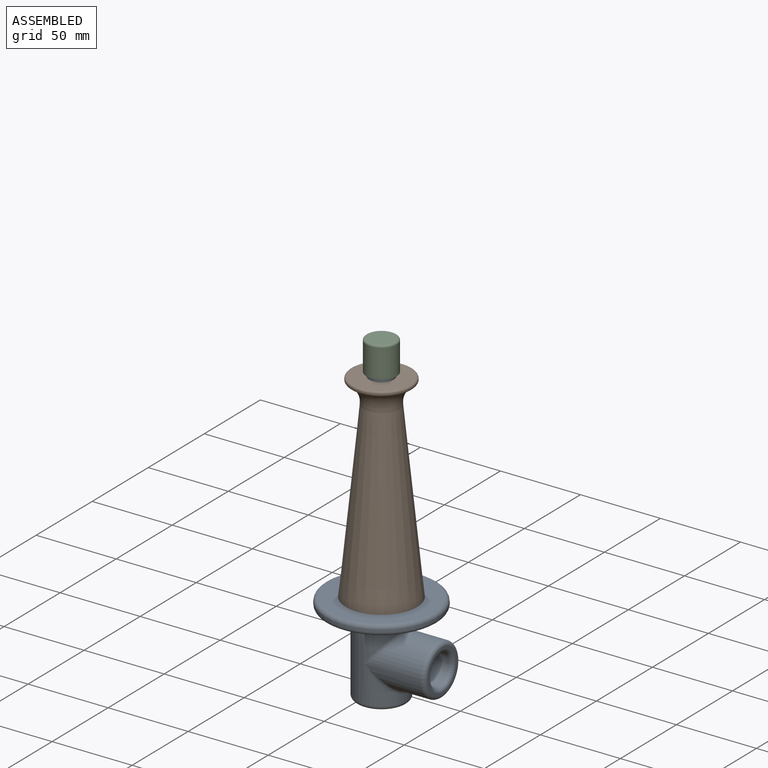
[diagram: assembled view]
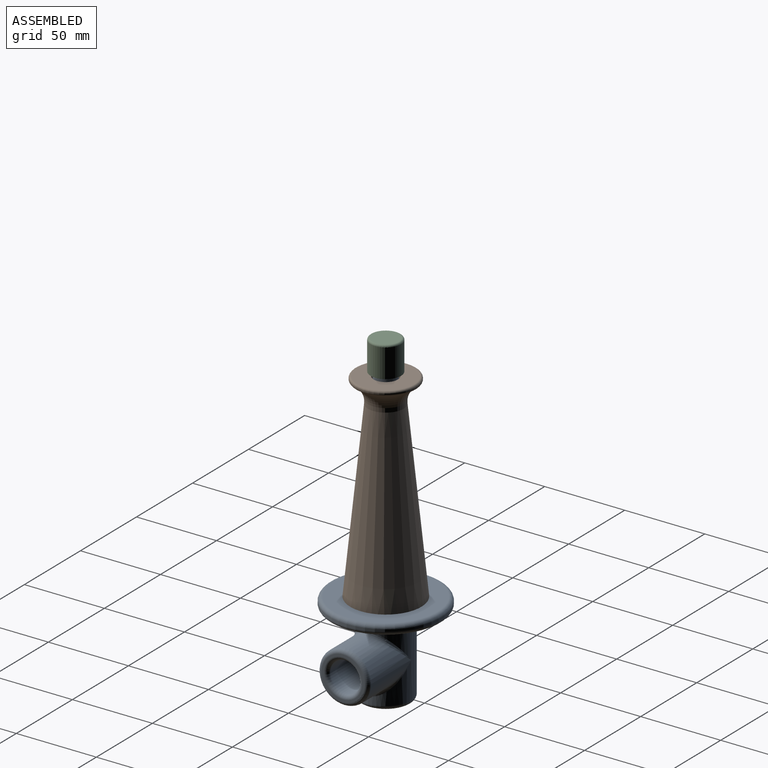
[diagram: assembled view, second angle]
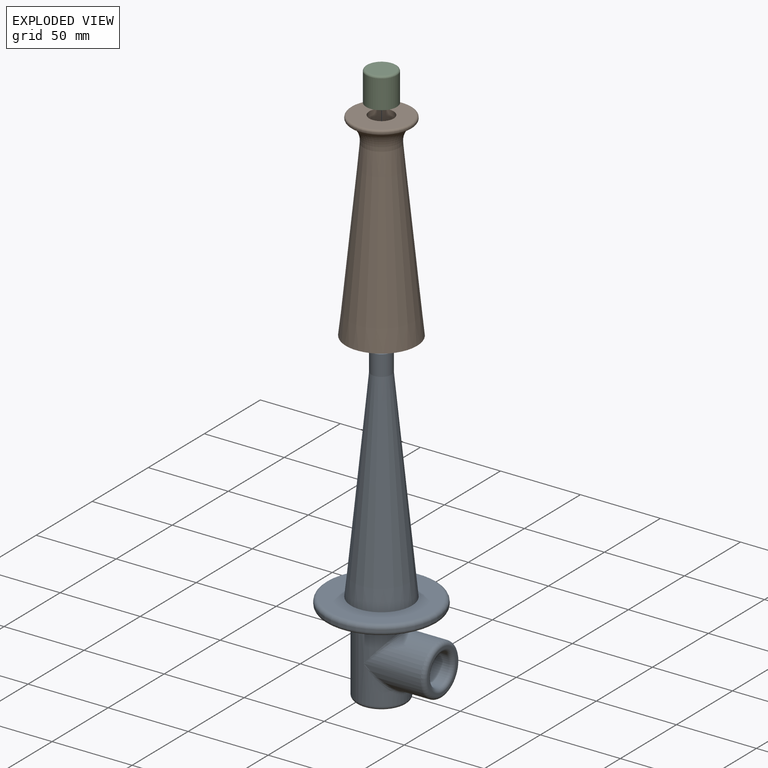
[diagram: exploded view]
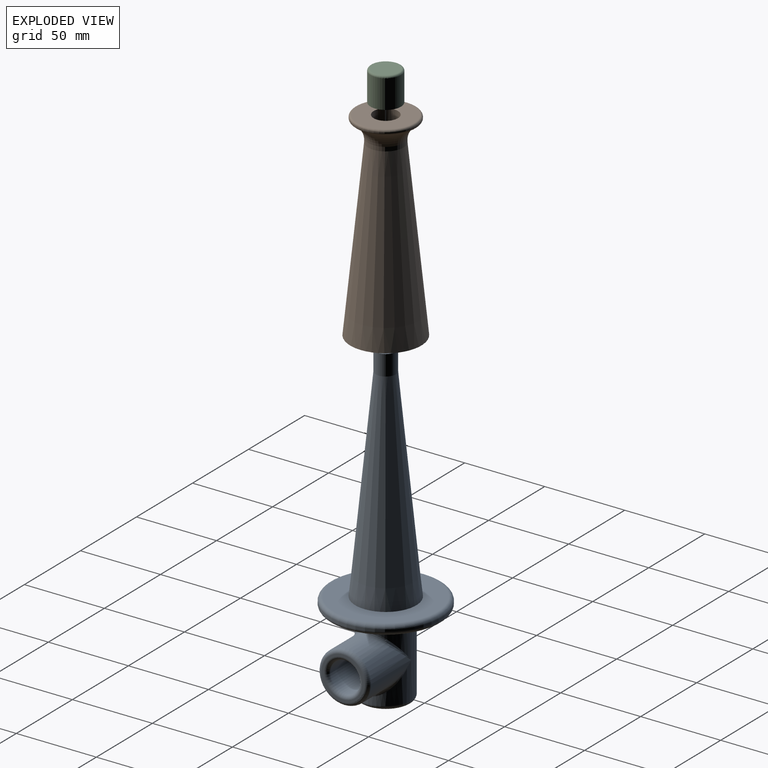
[diagram: exploded view, second angle]
ASSEMBLY  parts=3 mates=2
PART A: 24 faces, bbox 75.9x75.6x196.9 mm
  f0: cylinder r=15.88mm len=45.72mm, axis (0,0,1), area 3391mm2, adj f13,f14,f16,f17
  f1: cone r=19.05mm half-angle=5.7deg, axis (0,0,-1), area 10184.7mm2, adj f4,f22
  f2: cylinder r=34.92mm len=69.85mm, axis (0,0,1), area 278.7mm2, adj f18,f19
  f3: plane 64.77x64.77mm, normal (0,0,-1), area 2229.5mm2, adj f16,f19
  f4: plane 64.77x64.77mm, normal (0,0,1), area 2154.8mm2, adj f1,f18
  f5: plane 26.67x26.67mm, normal (0,0,-1), area 101.3mm2, adj f11,f17
  f6: cylinder r=15.88mm len=35.56mm, axis (-1,0,0), area 2377.6mm2, adj f13,f14,f15
  f7: plane 26.67x26.67mm, normal (1,0,0), area 101.3mm2, adj f12,f15
  f8: cylinder r=9.53mm len=35.56mm, axis (1,0,0), area 1571.7mm2, adj f12,f20,f21
  f9: cylinder r=9.53mm len=48.26mm, axis (0,0,-1), area 2331.8mm2, adj f10,f11,f20,f21
  f10: plane 19.05x19.05mm, normal (0,0,-1), area 285mm2, adj f9
  f11: torus R=12.06mm, axis (0,0,-1), area 261.9mm2, adj f5,f9
  f12: torus R=12.06mm, axis (1,0,0), area 261.9mm2, adj f7,f8
  f13: bspline ~31.75x18.42mm, area 141.5mm2, adj f0,f6
  f14: bspline ~31.75x18.42mm, area 141.5mm2, adj f0,f6
  f15: torus R=13.33mm, axis (1,0,0), area 374.8mm2, adj f6,f7
  f16: torus R=18.41mm, axis (0,0,1), area 421.1mm2, adj f0,f3
  f17: torus R=13.33mm, axis (0,0,-1), area 374.8mm2, adj f0,f5
  f18: torus R=32.38mm, axis (0,0,1), area 852.4mm2, adj f2,f4
  f19: torus R=32.38mm, axis (0,0,1), area 852.4mm2, adj f2,f3
  f20: bspline ~19.05x14.61mm, area 175.6mm2, adj f8,f9
  f21: bspline ~19.05x14.61mm, area 175.6mm2, adj f8,f9
  f22: cylinder r=6.35mm len=12.7mm, axis (0,0,-1), area 506.7mm2, adj f1,f23
  f23: plane 12.7x12.7mm, normal (0,0,1), area 126.7mm2, adj f22
PART B: 8 faces, bbox 51.4x51.4x124.5 mm
  f0: plane 44.45x44.45mm, normal (0,0,1), area 254.6mm2, adj f1,f4
  f1: cone r=9.53mm half-angle=5.8deg, axis (0,0,1), area 11460.1mm2, adj f0,f5
  f2: cylinder r=19.05mm len=38.1mm, axis (0,0,-1), area 52.5mm2, adj f6,f7
  f3: plane 35.56x35.56mm, normal (0,0,-1), area 810.7mm2, adj f4,f6
  f4: cone r=7.62mm half-angle=5.8deg, axis (0,0,1), area 10981.3mm2, adj f0,f3
  f5: torus R=23.75mm, axis (0,0,-1), area 1313.7mm2, adj f1,f7
  f6: torus R=17.78mm, axis (0,0,1), area 233mm2, adj f2,f3
  f7: torus R=17.78mm, axis (0,0,-1), area 169.3mm2, adj f2,f5
PART C: 6 faces, bbox 20.6x20.6x19.1 mm
  f0: cylinder r=9.53mm len=19.05mm, axis (0,0,-1), area 1064.1mm2, adj f1,f5
  f1: plane 19.05x19.05mm, normal (0,0,1), area 142.7mm2, adj f0,f3
  f2: plane 16.51x16.51mm, normal (0,0,-1), area 214.1mm2, adj f5
  f3: cylinder r=6.73mm len=13.46mm, axis (0,0,1), area 537.1mm2, adj f1,f4
  f4: plane 13.46x13.46mm, normal (0,0,1), area 142.3mm2, adj f3
  f5: torus R=8.26mm, axis (0,0,1), area 113.6mm2, adj f0,f2
PLACE A t=(-88.12,-15.88,-7.22)mm fixed
PLACE B rot(axis=(-0.57,-0.82,0),180deg) t=(-88.12,-15.88,117.24)mm
PLACE C rot(axis=(1,0,0),180deg) t=(-88.12,-15.88,138.83)mm
MATE revolute B.f1 <-> A.f1  axis (0,0,-1) through (-88.12,-15.88,-7.22)mm
MATE fastened C.f3 <-> A.f22  axis (0,0,-1) through (-88.12,-15.88,132.48)mm
